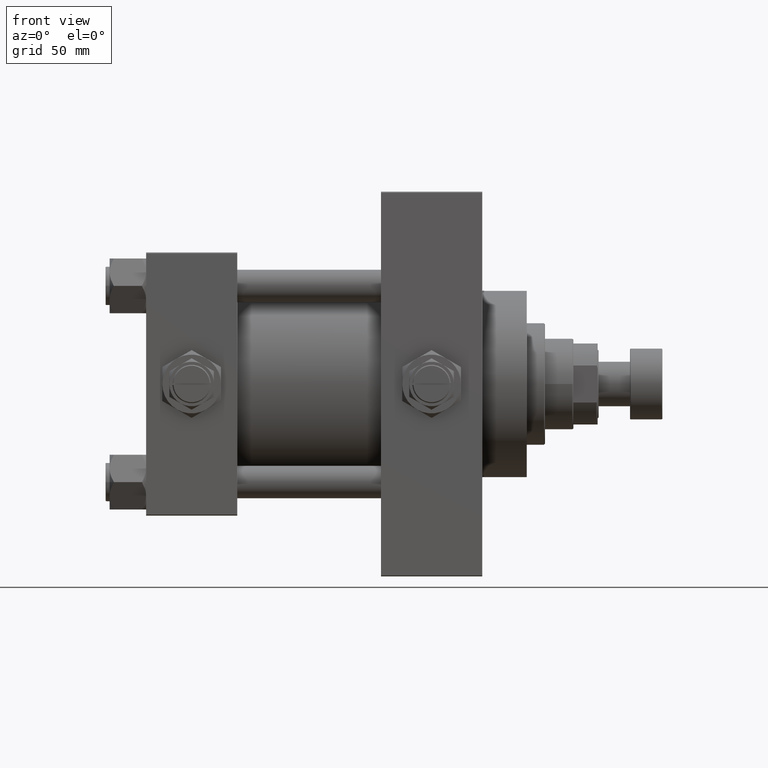
[diagram: clean part render]
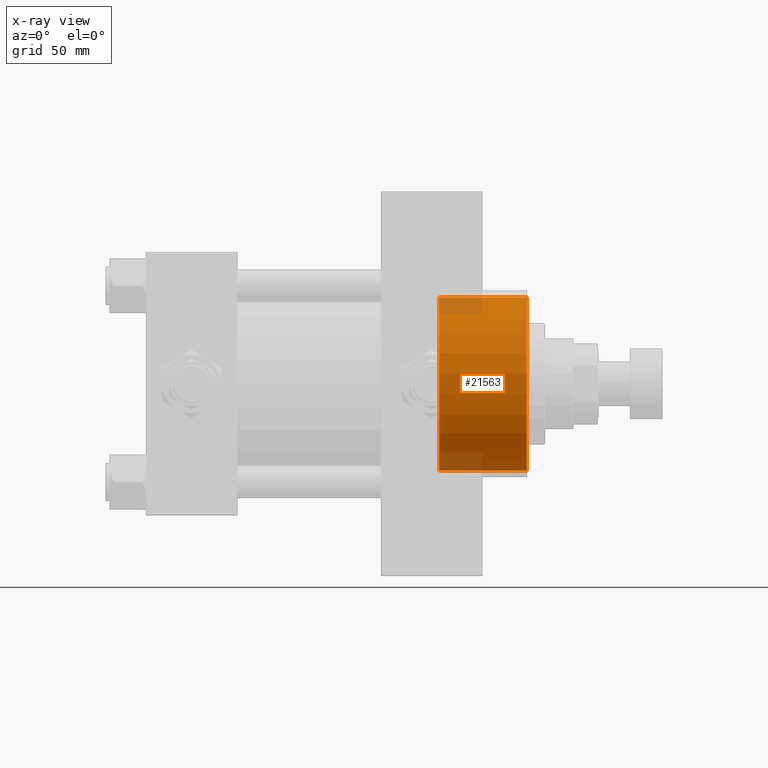
[diagram: x-ray — body ghosted, one internal face saturated and labeled with its STEP entity id]
A machine part, front view, then the same camera in x-ray: the body is ghosted and one INTERNAL B-rep face — a face not visible from any outside direction — is saturated and labeled: STEP entity #21563.
In plain terms, the highlighted cylindrical surface (partial cylindrical patch) has radius 42.75 mm, axis along (-1, 0, 0).
Its self-contained STEP definition (entity closure, byte-faithful):
#1463 = VECTOR ( 'NONE', #46557, 1000.000000000000000 ) ;
#2421 = DIRECTION ( 'NONE',  ( -0.000000000000000000, -0.000000000000000000, -1.000000000000000000 ) ) ;
#3026 = DIRECTION ( 'NONE',  ( 1.000000000000000000, 0.000000000000000000, 0.000000000000000000 ) ) ;
#5808 = CARTESIAN_POINT ( 'NONE',  ( 0.000000000000000000, 0.000000000000000000, 43.25999999999999801 ) ) ;
#7917 = LINE ( 'NONE', #47541, #1463 ) ;
#8456 = CARTESIAN_POINT ( 'NONE',  ( 42.75000000000000000, 5.235365066354935472E-15, 43.25999999999999801 ) ) ;
#10264 = CYLINDRICAL_SURFACE ( 'NONE', #31676, 42.75000000000000000 ) ;
#11731 = EDGE_CURVE ( 'NONE', #30253, #50115, #7917, .T. ) ;
#14707 = LINE ( 'NONE', #26165, #22837 ) ;
#17653 = CARTESIAN_POINT ( 'NONE',  ( -42.75000000000000000, 0.000000000000000000, 0.000000000000000000 ) ) ;
#18034 = DIRECTION ( 'NONE',  ( 0.000000000000000000, 0.000000000000000000, 1.000000000000000000 ) ) ;
#18589 = CARTESIAN_POINT ( 'NONE',  ( -42.75000000000000000, 0.000000000000000000, 43.25999999999999801 ) ) ;
#18830 = CIRCLE ( 'NONE', #34246, 42.75000000000000000 ) ;
#19578 = EDGE_CURVE ( 'NONE', #23770, #42091, #14707, .T. ) ;
#21563 = ADVANCED_FACE ( 'NONE', ( #40530 ), #10264, .T. ) ;
#21867 = DIRECTION ( 'NONE',  ( -0.000000000000000000, -0.000000000000000000, -1.000000000000000000 ) ) ;
#22837 = VECTOR ( 'NONE', #21867, 1000.000000000000000 ) ;
#23006 = AXIS2_PLACEMENT_3D ( 'NONE', #5808, #45167, #37076 ) ;
#23770 = VERTEX_POINT ( 'NONE', #18589 ) ;
#24085 = EDGE_CURVE ( 'NONE', #50115, #42091, #18830, .T. ) ;
#25044 = DIRECTION ( 'NONE',  ( -1.000000000000000000, 0.000000000000000000, 0.000000000000000000 ) ) ;
#25678 = ORIENTED_EDGE ( 'NONE', *, *, #24085, .T. ) ;
#26165 = CARTESIAN_POINT ( 'NONE',  ( -42.75000000000000000, 0.000000000000000000, 43.25999999999999801 ) ) ;
#29604 = CARTESIAN_POINT ( 'NONE',  ( 0.000000000000000000, 0.000000000000000000, 43.25999999999999801 ) ) ;
#30253 = VERTEX_POINT ( 'NONE', #8456 ) ;
#31676 = AXIS2_PLACEMENT_3D ( 'NONE', #29604, #2421, #25044 ) ;
#33565 = CARTESIAN_POINT ( 'NONE',  ( 42.75000000000000000, 5.235365066354935472E-15, 0.000000000000000000 ) ) ;
#34246 = AXIS2_PLACEMENT_3D ( 'NONE', #41391, #18034, #3026 ) ;
#34730 = ORIENTED_EDGE ( 'NONE', *, *, #35306, .F. ) ;
#34991 = ORIENTED_EDGE ( 'NONE', *, *, #11731, .T. ) ;
#35189 = CIRCLE ( 'NONE', #23006, 42.75000000000000000 ) ;
#35306 = EDGE_CURVE ( 'NONE', #30253, #23770, #35189, .T. ) ;
#36140 = ORIENTED_EDGE ( 'NONE', *, *, #19578, .F. ) ;
#37076 = DIRECTION ( 'NONE',  ( 1.000000000000000000, 0.000000000000000000, 0.000000000000000000 ) ) ;
#40530 = FACE_OUTER_BOUND ( 'NONE', #44369, .T. ) ;
#41391 = CARTESIAN_POINT ( 'NONE',  ( 0.000000000000000000, 0.000000000000000000, 0.000000000000000000 ) ) ;
#42091 = VERTEX_POINT ( 'NONE', #17653 ) ;
#44369 = EDGE_LOOP ( 'NONE', ( #34730, #34991, #25678, #36140 ) ) ;
#45167 = DIRECTION ( 'NONE',  ( 0.000000000000000000, 0.000000000000000000, 1.000000000000000000 ) ) ;
#46557 = DIRECTION ( 'NONE',  ( -0.000000000000000000, -0.000000000000000000, -1.000000000000000000 ) ) ;
#47541 = CARTESIAN_POINT ( 'NONE',  ( 42.75000000000000000, 5.235365066354935472E-15, 43.25999999999999801 ) ) ;
#50115 = VERTEX_POINT ( 'NONE', #33565 ) ;